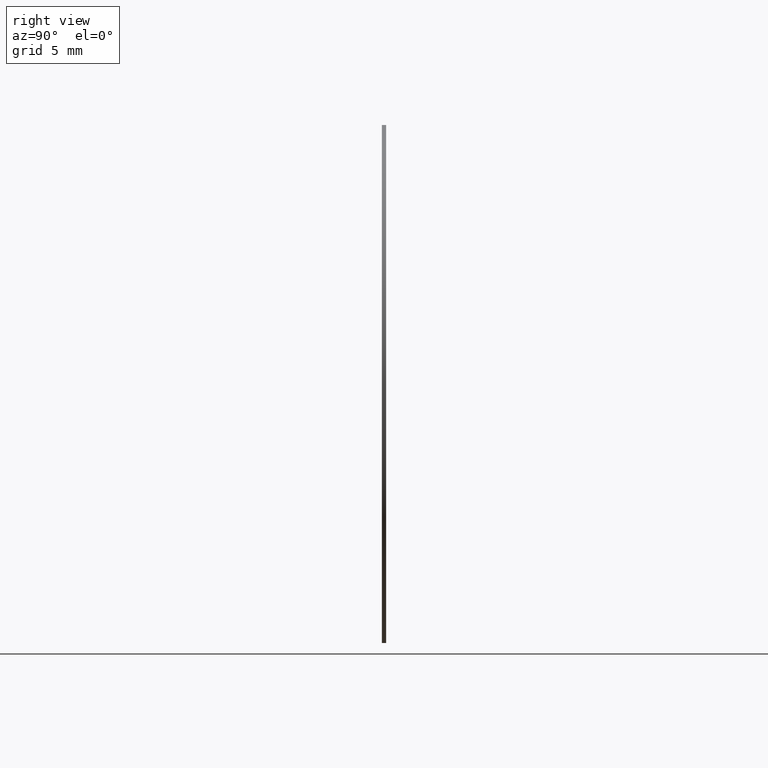
[diagram: clean part render]
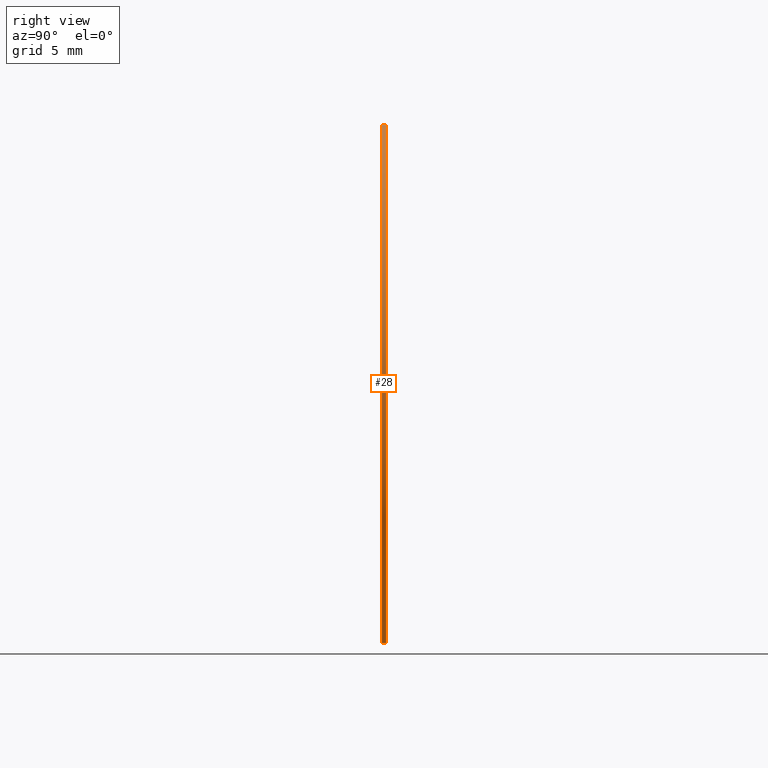
[diagram: same view with one face highlighted and labeled with its STEP entity id]
A machine part, right view. The second image highlights one B-rep face of the part: STEP entity #28.
In plain terms, the highlighted cylindrical surface (partial cylindrical patch) has radius 12.5 mm, axis along (-0, -1, -0).
Its self-contained STEP definition (entity closure, byte-faithful):
#1 = LINE ( 'NONE', #58, #69 ) ;
#12 = VERTEX_POINT ( 'NONE', #141 ) ;
#13 = CARTESIAN_POINT ( 'NONE',  ( 0.000000000000000000, -0.1000000000000000056, -12.50000000000000000 ) ) ;
#14 = VECTOR ( 'NONE', #124, 1000.000000000000000 ) ;
#22 = DIRECTION ( 'NONE',  ( 0.000000000000000000, 0.000000000000000000, 1.000000000000000000 ) ) ;
#28 = ADVANCED_FACE ( 'NONE', ( #51 ), #138, .T. ) ;
#33 = VERTEX_POINT ( 'NONE', #92 ) ;
#34 = DIRECTION ( 'NONE',  ( -0.000000000000000000, -1.000000000000000000, -0.000000000000000000 ) ) ;
#41 = DIRECTION ( 'NONE',  ( 0.000000000000000000, 1.000000000000000000, 0.000000000000000000 ) ) ;
#46 = ORIENTED_EDGE ( 'NONE', *, *, #135, .F. ) ;
#51 = FACE_OUTER_BOUND ( 'NONE', #190, .T. ) ;
#58 = CARTESIAN_POINT ( 'NONE',  ( 1.530808498934191521E-15, 0.1000000000000000056, 12.50000000000000000 ) ) ;
#69 = VECTOR ( 'NONE', #213, 1000.000000000000000 ) ;
#84 = AXIS2_PLACEMENT_3D ( 'NONE', #181, #179, #119 ) ;
#92 = CARTESIAN_POINT ( 'NONE',  ( 1.530808498934191521E-15, -0.1000000000000000056, 12.50000000000000000 ) ) ;
#95 = CARTESIAN_POINT ( 'NONE',  ( 0.000000000000000000, 0.1000000000000000056, -12.50000000000000000 ) ) ;
#111 = CIRCLE ( 'NONE', #84, 12.50000000000000000 ) ;
#112 = DIRECTION ( 'NONE',  ( 0.000000000000000000, 0.000000000000000000, -1.000000000000000000 ) ) ;
#119 = DIRECTION ( 'NONE',  ( 0.000000000000000000, 0.000000000000000000, 1.000000000000000000 ) ) ;
#124 = DIRECTION ( 'NONE',  ( -0.000000000000000000, -1.000000000000000000, -0.000000000000000000 ) ) ;
#125 = LINE ( 'NONE', #146, #14 ) ;
#130 = VERTEX_POINT ( 'NONE', #13 ) ;
#135 = EDGE_CURVE ( 'NONE', #240, #130, #125, .T. ) ;
#138 = CYLINDRICAL_SURFACE ( 'NONE', #246, 12.50000000000000000 ) ;
#139 = AXIS2_PLACEMENT_3D ( 'NONE', #159, #41, #22 ) ;
#141 = CARTESIAN_POINT ( 'NONE',  ( 1.530808498934191521E-15, 0.1000000000000000056, 12.50000000000000000 ) ) ;
#146 = CARTESIAN_POINT ( 'NONE',  ( 0.000000000000000000, 0.1000000000000000056, -12.50000000000000000 ) ) ;
#152 = ORIENTED_EDGE ( 'NONE', *, *, #249, .T. ) ;
#159 = CARTESIAN_POINT ( 'NONE',  ( 0.000000000000000000, 0.1000000000000000056, 0.000000000000000000 ) ) ;
#179 = DIRECTION ( 'NONE',  ( 0.000000000000000000, 1.000000000000000000, 0.000000000000000000 ) ) ;
#181 = CARTESIAN_POINT ( 'NONE',  ( 0.000000000000000000, -0.1000000000000000056, 0.000000000000000000 ) ) ;
#190 = EDGE_LOOP ( 'NONE', ( #201, #238, #152, #46 ) ) ;
#201 = ORIENTED_EDGE ( 'NONE', *, *, #235, .F. ) ;
#208 = CARTESIAN_POINT ( 'NONE',  ( 0.000000000000000000, 0.1000000000000000056, 0.000000000000000000 ) ) ;
#213 = DIRECTION ( 'NONE',  ( -0.000000000000000000, -1.000000000000000000, -0.000000000000000000 ) ) ;
#227 = CIRCLE ( 'NONE', #139, 12.50000000000000000 ) ;
#235 = EDGE_CURVE ( 'NONE', #12, #240, #227, .T. ) ;
#238 = ORIENTED_EDGE ( 'NONE', *, *, #243, .T. ) ;
#240 = VERTEX_POINT ( 'NONE', #95 ) ;
#243 = EDGE_CURVE ( 'NONE', #12, #33, #1, .T. ) ;
#246 = AXIS2_PLACEMENT_3D ( 'NONE', #208, #34, #112 ) ;
#249 = EDGE_CURVE ( 'NONE', #33, #130, #111, .T. ) ;